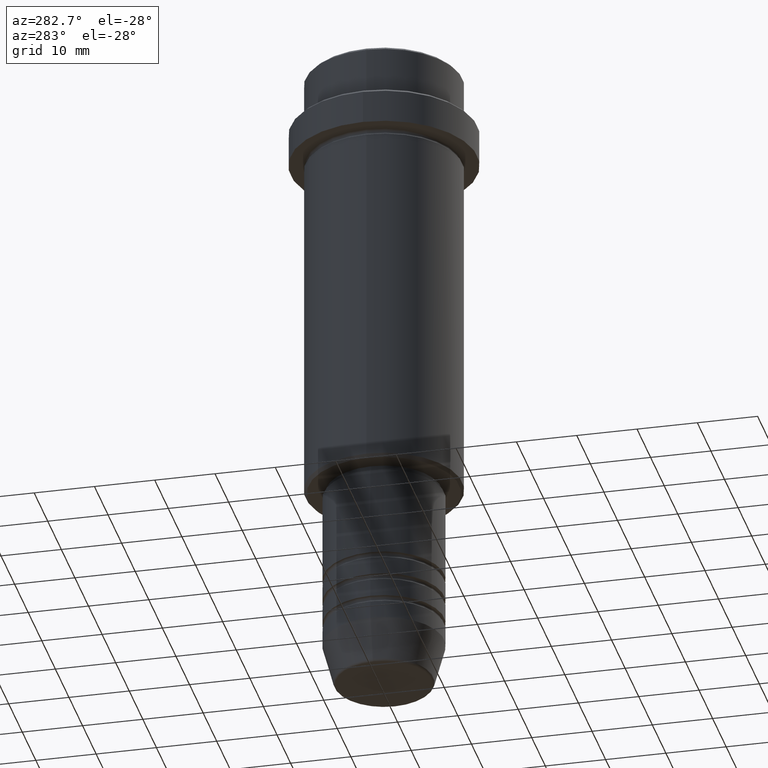
[diagram: clean part render]
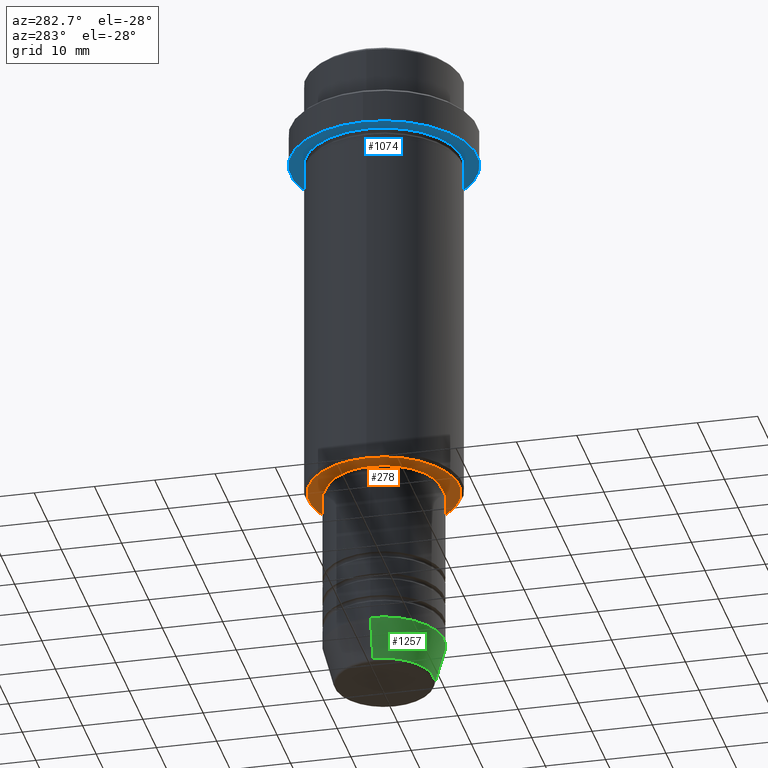
[diagram: same view with three faces highlighted in distinct colors, each labeled with its STEP entity id]
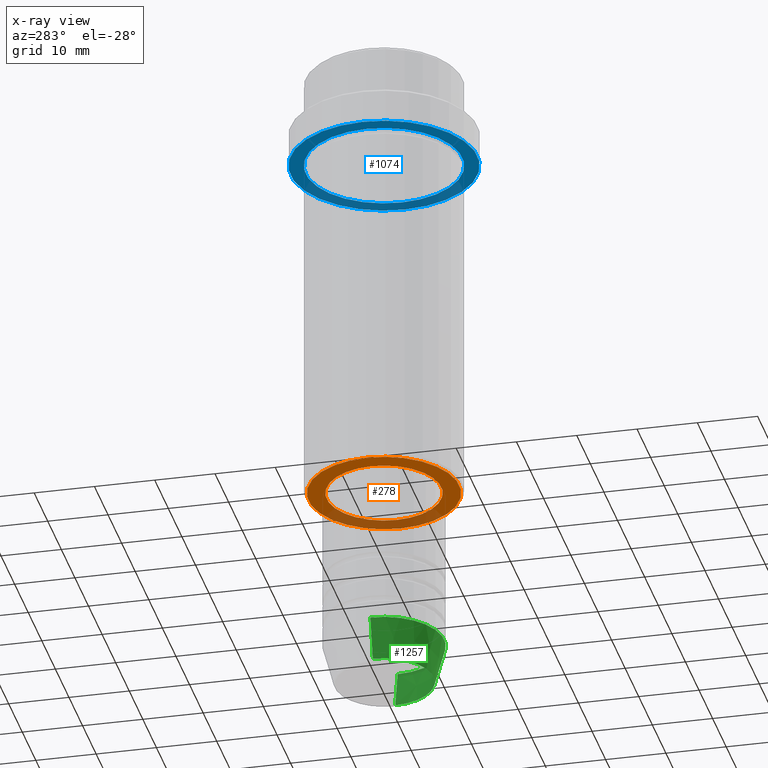
[diagram: x-ray of the same camera — body ghosted, the three highlighted faces saturated]
A machine part, auxiliary view with three faces highlighted in distinct colors.
The next image is the same camera in x-ray (body ghosted, the three faces saturated) — at least one of them is partly hidden behind the body in this view.
Their STEP definitions:

[orange] entity #278 — the highlighted planar face has unit normal (0, 0, -1).
#14 = DIRECTION ( 'NONE',  ( 0.000000000000000000, 0.000000000000000000, -1.000000000000000000 ) ) ;
#45 = AXIS2_PLACEMENT_3D ( 'NONE', #876, #1070, #1174 ) ;
#53 = PLANE ( 'NONE',  #622 ) ;
#63 = CARTESIAN_POINT ( 'NONE',  ( 12.50000000000002487, 0.000000000000000000, -75.00000000000001421 ) ) ;
#152 = DIRECTION ( 'NONE',  ( 0.000000000000000000, 0.000000000000000000, -1.000000000000000000 ) ) ;
#230 = DIRECTION ( 'NONE',  ( 1.000000000000000000, 0.000000000000000000, 0.000000000000000000 ) ) ;
#257 = CARTESIAN_POINT ( 'NONE',  ( 0.000000000000000000, 0.000000000000000000, -75.00000000000001421 ) ) ;
#278 = ADVANCED_FACE ( 'NONE', ( #362, #292 ), #53, .T. ) ;
#282 = CARTESIAN_POINT ( 'NONE',  ( 9.499999999999996447, 0.000000000000000000, -75.00000000000001421 ) ) ;
#292 = FACE_BOUND ( 'NONE', #676, .T. ) ;
#362 = FACE_OUTER_BOUND ( 'NONE', #491, .T. ) ;
#375 = CIRCLE ( 'NONE', #1155, 12.50000000000002487 ) ;
#377 = CIRCLE ( 'NONE', #45, 9.499999999999996447 ) ;
#393 = EDGE_CURVE ( 'NONE', #477, #914, #375, .T. ) ;
#465 = ORIENTED_EDGE ( 'NONE', *, *, #1362, .T. ) ;
#477 = VERTEX_POINT ( 'NONE', #977 ) ;
#491 = EDGE_LOOP ( 'NONE', ( #465, #859 ) ) ;
#526 = ORIENTED_EDGE ( 'NONE', *, *, #928, .T. ) ;
#541 = CARTESIAN_POINT ( 'NONE',  ( 0.000000000000000000, 0.000000000000000000, -75.00000000000001421 ) ) ;
#582 = DIRECTION ( 'NONE',  ( -1.000000000000000000, 0.000000000000000000, 0.000000000000000000 ) ) ;
#605 = EDGE_CURVE ( 'NONE', #735, #1092, #686, .T. ) ;
#622 = AXIS2_PLACEMENT_3D ( 'NONE', #1124, #152, #934 ) ;
#676 = EDGE_LOOP ( 'NONE', ( #910, #526 ) ) ;
#686 = CIRCLE ( 'NONE', #799, 9.499999999999996447 ) ;
#735 = VERTEX_POINT ( 'NONE', #282 ) ;
#757 = AXIS2_PLACEMENT_3D ( 'NONE', #257, #14, #582 ) ;
#758 = DIRECTION ( 'NONE',  ( -1.000000000000000000, 0.000000000000000000, 0.000000000000000000 ) ) ;
#799 = AXIS2_PLACEMENT_3D ( 'NONE', #999, #1087, #230 ) ;
#859 = ORIENTED_EDGE ( 'NONE', *, *, #393, .T. ) ;
#876 = CARTESIAN_POINT ( 'NONE',  ( 0.000000000000000000, 0.000000000000000000, -75.00000000000001421 ) ) ;
#910 = ORIENTED_EDGE ( 'NONE', *, *, #605, .T. ) ;
#914 = VERTEX_POINT ( 'NONE', #63 ) ;
#928 = EDGE_CURVE ( 'NONE', #1092, #735, #377, .T. ) ;
#934 = DIRECTION ( 'NONE',  ( -1.000000000000000000, 0.000000000000000000, -0.000000000000000000 ) ) ;
#952 = DIRECTION ( 'NONE',  ( 0.000000000000000000, 0.000000000000000000, -1.000000000000000000 ) ) ;
#977 = CARTESIAN_POINT ( 'NONE',  ( -12.50000000000002487, 1.561424668912876886E-15, -75.00000000000001421 ) ) ;
#999 = CARTESIAN_POINT ( 'NONE',  ( 0.000000000000000000, 0.000000000000000000, -75.00000000000001421 ) ) ;
#1036 = CARTESIAN_POINT ( 'NONE',  ( -9.499999999999996447, 1.163414459189985091E-15, -75.00000000000001421 ) ) ;
#1070 = DIRECTION ( 'NONE',  ( -0.000000000000000000, -0.000000000000000000, 1.000000000000000000 ) ) ;
#1087 = DIRECTION ( 'NONE',  ( -0.000000000000000000, -0.000000000000000000, 1.000000000000000000 ) ) ;
#1092 = VERTEX_POINT ( 'NONE', #1036 ) ;
#1124 = CARTESIAN_POINT ( 'NONE',  ( 0.000000000000000000, 13.00000000000000000, -75.00000000000001421 ) ) ;
#1155 = AXIS2_PLACEMENT_3D ( 'NONE', #541, #952, #758 ) ;
#1174 = DIRECTION ( 'NONE',  ( 1.000000000000000000, 0.000000000000000000, 0.000000000000000000 ) ) ;
#1350 = CIRCLE ( 'NONE', #757, 12.50000000000002487 ) ;
#1362 = EDGE_CURVE ( 'NONE', #914, #477, #1350, .T. ) ;

[blue] entity #1074 — the highlighted planar face has unit normal (0, 0, -1).
#8 = CARTESIAN_POINT ( 'NONE',  ( 0.000000000000000000, 0.000000000000000000, -15.00000000000000000 ) ) ;
#40 = DIRECTION ( 'NONE',  ( 0.000000000000000000, 0.000000000000000000, -1.000000000000000000 ) ) ;
#105 = ORIENTED_EDGE ( 'NONE', *, *, #161, .F. ) ;
#156 = DIRECTION ( 'NONE',  ( -1.000000000000000000, 0.000000000000000000, -0.000000000000000000 ) ) ;
#161 = EDGE_CURVE ( 'NONE', #1121, #456, #234, .T. ) ;
#213 = FACE_OUTER_BOUND ( 'NONE', #1364, .T. ) ;
#221 = CARTESIAN_POINT ( 'NONE',  ( 12.99999999999999645, 1.592040838891558701E-15, -15.00000000000000000 ) ) ;
#234 = CIRCLE ( 'NONE', #1367, 15.50000000000000000 ) ;
#235 = CIRCLE ( 'NONE', #1272, 12.99999999999999645 ) ;
#332 = CARTESIAN_POINT ( 'NONE',  ( 0.000000000000000000, 0.000000000000000000, -15.00000000000000000 ) ) ;
#341 = DIRECTION ( 'NONE',  ( -0.000000000000000000, -0.000000000000000000, 1.000000000000000000 ) ) ;
#355 = DIRECTION ( 'NONE',  ( -0.000000000000000000, -0.000000000000000000, 1.000000000000000000 ) ) ;
#449 = DIRECTION ( 'NONE',  ( 1.000000000000000000, 0.000000000000000000, 0.000000000000000000 ) ) ;
#456 = VERTEX_POINT ( 'NONE', #1376 ) ;
#489 = DIRECTION ( 'NONE',  ( -1.000000000000000000, 0.000000000000000000, 0.000000000000000000 ) ) ;
#511 = VERTEX_POINT ( 'NONE', #993 ) ;
#556 = FACE_BOUND ( 'NONE', #760, .T. ) ;
#587 = EDGE_CURVE ( 'NONE', #511, #974, #235, .T. ) ;
#589 = ORIENTED_EDGE ( 'NONE', *, *, #1181, .T. ) ;
#608 = CARTESIAN_POINT ( 'NONE',  ( 0.000000000000000000, 0.000000000000000000, -15.00000000000000000 ) ) ;
#639 = ORIENTED_EDGE ( 'NONE', *, *, #1384, .F. ) ;
#687 = DIRECTION ( 'NONE',  ( -0.000000000000000000, -0.000000000000000000, 1.000000000000000000 ) ) ;
#691 = CIRCLE ( 'NONE', #1207, 15.50000000000000000 ) ;
#712 = CIRCLE ( 'NONE', #1206, 12.99999999999999645 ) ;
#760 = EDGE_LOOP ( 'NONE', ( #822, #589 ) ) ;
#822 = ORIENTED_EDGE ( 'NONE', *, *, #587, .T. ) ;
#887 = CARTESIAN_POINT ( 'NONE',  ( 0.000000000000000000, 0.000000000000000000, -15.00000000000000000 ) ) ;
#945 = AXIS2_PLACEMENT_3D ( 'NONE', #1407, #40, #156 ) ;
#974 = VERTEX_POINT ( 'NONE', #221 ) ;
#975 = PLANE ( 'NONE',  #945 ) ;
#993 = CARTESIAN_POINT ( 'NONE',  ( -12.99999999999999645, 0.000000000000000000, -15.00000000000000000 ) ) ;
#1074 = ADVANCED_FACE ( 'NONE', ( #556, #213 ), #975, .T. ) ;
#1098 = DIRECTION ( 'NONE',  ( 1.000000000000000000, 0.000000000000000000, 0.000000000000000000 ) ) ;
#1106 = DIRECTION ( 'NONE',  ( -0.000000000000000000, -0.000000000000000000, 1.000000000000000000 ) ) ;
#1121 = VERTEX_POINT ( 'NONE', #1215 ) ;
#1181 = EDGE_CURVE ( 'NONE', #974, #511, #712, .T. ) ;
#1192 = DIRECTION ( 'NONE',  ( -1.000000000000000000, 0.000000000000000000, 0.000000000000000000 ) ) ;
#1206 = AXIS2_PLACEMENT_3D ( 'NONE', #608, #1106, #489 ) ;
#1207 = AXIS2_PLACEMENT_3D ( 'NONE', #887, #341, #449 ) ;
#1215 = CARTESIAN_POINT ( 'NONE',  ( -15.50000000000000000, 1.898202538678397557E-15, -15.00000000000000000 ) ) ;
#1272 = AXIS2_PLACEMENT_3D ( 'NONE', #332, #355, #1192 ) ;
#1364 = EDGE_LOOP ( 'NONE', ( #639, #105 ) ) ;
#1367 = AXIS2_PLACEMENT_3D ( 'NONE', #8, #687, #1098 ) ;
#1376 = CARTESIAN_POINT ( 'NONE',  ( 15.50000000000000000, 0.000000000000000000, -15.00000000000000000 ) ) ;
#1384 = EDGE_CURVE ( 'NONE', #456, #1121, #691, .T. ) ;
#1407 = CARTESIAN_POINT ( 'NONE',  ( 0.000000000000000000, 15.50000000000000000, -15.00000000000000000 ) ) ;

[green] entity #1257 — the highlighted conical surface has half-angle 15 deg.
#9 = DIRECTION ( 'NONE',  ( -0.000000000000000000, -0.000000000000000000, 1.000000000000000000 ) ) ;
#37 = ORIENTED_EDGE ( 'NONE', *, *, #1397, .F. ) ;
#59 = DIRECTION ( 'NONE',  ( -0.2588190451025214611, 3.169619151431774186E-17, 0.9659258262890679791 ) ) ;
#70 = AXIS2_PLACEMENT_3D ( 'NONE', #1060, #199, #773 ) ;
#121 = CIRCLE ( 'NONE', #546, 10.00000000000000000 ) ;
#124 = VERTEX_POINT ( 'NONE', #597 ) ;
#199 = DIRECTION ( 'NONE',  ( -0.000000000000000000, -0.000000000000000000, 1.000000000000000000 ) ) ;
#270 = EDGE_CURVE ( 'NONE', #842, #124, #629, .T. ) ;
#475 = CONICAL_SURFACE ( 'NONE', #925, 10.00000000000000000, 0.2617993877991502405 ) ;
#546 = AXIS2_PLACEMENT_3D ( 'NONE', #1411, #9, #902 ) ;
#597 = CARTESIAN_POINT ( 'NONE',  ( -10.00000000000000000, 1.224646799147353256E-15, -103.0000000000000142 ) ) ;
#629 = LINE ( 'NONE', #717, #846 ) ;
#675 = FACE_OUTER_BOUND ( 'NONE', #849, .T. ) ;
#692 = CARTESIAN_POINT ( 'NONE',  ( 8.223655072137185940, 0.000000000000000000, -109.6294095225512706 ) ) ;
#717 = CARTESIAN_POINT ( 'NONE',  ( -10.00000000000000000, 1.224646799147353256E-15, -103.0000000000000142 ) ) ;
#727 = CARTESIAN_POINT ( 'NONE',  ( 10.00000000000000000, 0.000000000000000000, -103.0000000000000142 ) ) ;
#773 = DIRECTION ( 'NONE',  ( 1.000000000000000000, 0.000000000000000000, 0.000000000000000000 ) ) ;
#774 = CARTESIAN_POINT ( 'NONE',  ( 10.00000000000000000, 0.000000000000000000, -103.0000000000000142 ) ) ;
#842 = VERTEX_POINT ( 'NONE', #963 ) ;
#846 = VECTOR ( 'NONE', #59, 1000.000000000000114 ) ;
#849 = EDGE_LOOP ( 'NONE', ( #1190, #1144, #1263, #37 ) ) ;
#902 = DIRECTION ( 'NONE',  ( 1.000000000000000000, 0.000000000000000000, 0.000000000000000000 ) ) ;
#925 = AXIS2_PLACEMENT_3D ( 'NONE', #1083, #1273, #1158 ) ;
#955 = VERTEX_POINT ( 'NONE', #692 ) ;
#963 = CARTESIAN_POINT ( 'NONE',  ( -8.223655072137185940, 1.115877042642911659E-15, -109.6294095225512706 ) ) ;
#988 = CIRCLE ( 'NONE', #70, 8.223655072137185940 ) ;
#1045 = VERTEX_POINT ( 'NONE', #774 ) ;
#1053 = VECTOR ( 'NONE', #1334, 1000.000000000000114 ) ;
#1060 = CARTESIAN_POINT ( 'NONE',  ( 0.000000000000000000, 0.000000000000000000, -109.6294095225512706 ) ) ;
#1083 = CARTESIAN_POINT ( 'NONE',  ( 0.000000000000000000, 0.000000000000000000, -103.0000000000000142 ) ) ;
#1129 = LINE ( 'NONE', #727, #1053 ) ;
#1144 = ORIENTED_EDGE ( 'NONE', *, *, #1209, .T. ) ;
#1158 = DIRECTION ( 'NONE',  ( 1.000000000000000000, 0.000000000000000000, 0.000000000000000000 ) ) ;
#1160 = EDGE_CURVE ( 'NONE', #955, #1045, #1129, .T. ) ;
#1190 = ORIENTED_EDGE ( 'NONE', *, *, #270, .F. ) ;
#1209 = EDGE_CURVE ( 'NONE', #842, #955, #988, .T. ) ;
#1257 = ADVANCED_FACE ( 'NONE', ( #675 ), #475, .T. ) ;
#1263 = ORIENTED_EDGE ( 'NONE', *, *, #1160, .T. ) ;
#1273 = DIRECTION ( 'NONE',  ( -0.000000000000000000, -0.000000000000000000, 1.000000000000000000 ) ) ;
#1334 = DIRECTION ( 'NONE',  ( 0.2588190451025214611, 0.000000000000000000, 0.9659258262890679791 ) ) ;
#1397 = EDGE_CURVE ( 'NONE', #124, #1045, #121, .T. ) ;
#1411 = CARTESIAN_POINT ( 'NONE',  ( 0.000000000000000000, 0.000000000000000000, -103.0000000000000142 ) ) ;